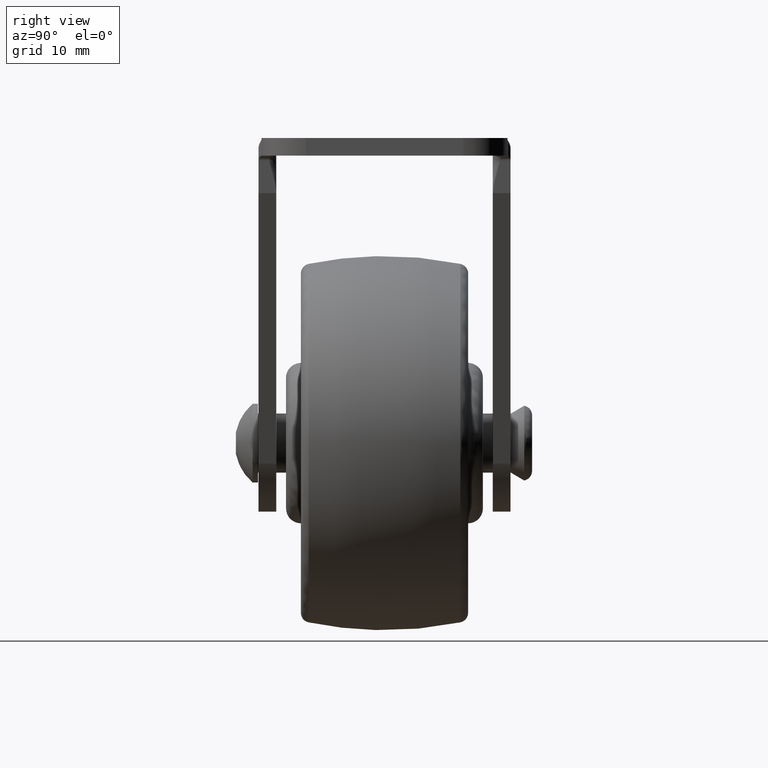
[diagram: clean part render]
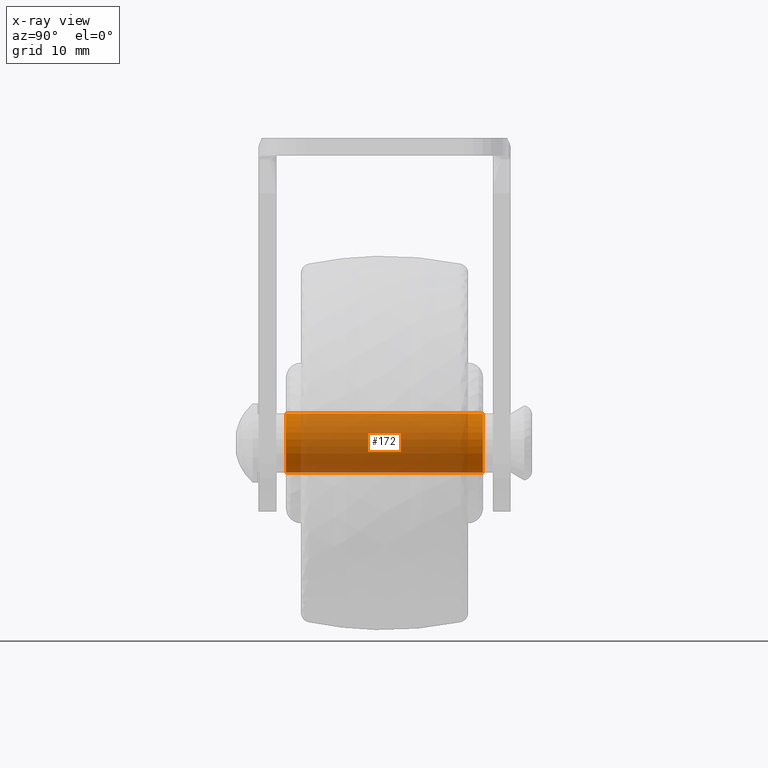
[diagram: x-ray — body ghosted, one internal face saturated and labeled with its STEP entity id]
A machine part, right view, then the same camera in x-ray: the body is ghosted and one INTERNAL B-rep face — a face not visible from any outside direction — is saturated and labeled: STEP entity #172.
In plain terms, the highlighted cylindrical surface (edge-blend (fillet) strip) has radius 3 mm, axis along (0, 1, 0).
Its self-contained STEP definition (entity closure, byte-faithful):
#172=ADVANCED_FACE('',(#499),#498,.F.);
#498=CYLINDRICAL_SURFACE('',#1751,3.00000000000E+00);
#499=FACE_OUTER_BOUND('',#1752,.T.);
#1748=CARTESIAN_POINT('',(0.00000000000E+00,9.90000000000E+02,0.00000000000E+00));
#1749=DIRECTION('',(-0.00000000000E+00,1.00000000000E+00,-0.00000000000E+00));
#1750=DIRECTION('',(1.22464679915E-16,0.00000000000E+00,-1.00000000000E+00));
#1751=AXIS2_PLACEMENT_3D('',#1748,#1749,#1750);
#1752=EDGE_LOOP('',(#2999,#3000,#3001,#3002));
#2999=ORIENTED_EDGE('',*,*,#3438,.F.);
#3000=ORIENTED_EDGE('',*,*,#3479,.F.);
#3001=ORIENTED_EDGE('',*,*,#3433,.T.);
#3002=ORIENTED_EDGE('',*,*,#3480,.T.);
#3433=EDGE_CURVE('',#3707,#3708,#3709,.T.);
#3438=EDGE_CURVE('',#3736,#3735,#3743,.T.);
#3479=EDGE_CURVE('',#3707,#3736,#4013,.T.);
#3480=EDGE_CURVE('',#3708,#3735,#4019,.T.);
#3707=VERTEX_POINT('',#5437);
#3708=VERTEX_POINT('',#5438);
#3709=CIRCLE('',#5442,3.00000000000E+00);
#3735=VERTEX_POINT('',#5457);
#3736=VERTEX_POINT('',#5458);
#3743=CIRCLE('',#5466,3.00000000000E+00);
#4013=(BOUNDED_CURVE() B_SPLINE_CURVE(1,(#5634,#5635),.UNSPECIFIED.,.F.,.F.) B_SPLINE_CURVE_WITH_KNOTS((2,2),(8.33333328360E-02,9.16666665505E-01),.UNSPECIFIED.) CURVE() GEOMETRIC_REPRESENTATION_ITEM() RATIONAL_B_SPLINE_CURVE((1.00000000000E+00,1.00000000000E+00)) REPRESENTATION_ITEM('') );
#4019=(BOUNDED_CURVE() B_SPLINE_CURVE(1,(#5636,#5637),.UNSPECIFIED.,.F.,.F.) B_SPLINE_CURVE_WITH_KNOTS((2,2),(8.33333333333E-02,9.16666666667E-01),.UNSPECIFIED.) CURVE() GEOMETRIC_REPRESENTATION_ITEM() RATIONAL_B_SPLINE_CURVE((7.50000000000E-01,7.50000000000E-01)) REPRESENTATION_ITEM('') );
#5437=CARTESIAN_POINT('',(5.92118946467E-16,-1.00000000000E+01,-3.00000000000E+00));
#5438=CARTESIAN_POINT('',(0.00000000000E+00,-1.00000000000E+01,3.00000000000E+00));
#5439=CARTESIAN_POINT('',(0.00000000000E+00,-1.00000000000E+01,0.00000000000E+00));
#5440=DIRECTION('',(-0.00000000000E+00,-1.00000000000E+00,0.00000000000E+00));
#5441=DIRECTION('',(-1.22460635382E-16,0.00000000000E+00,1.00000000000E+00));
#5442=AXIS2_PLACEMENT_3D('',#5439,#5440,#5441);
#5457=CARTESIAN_POINT('',(0.00000000000E+00,1.00000000000E+01,3.00000000000E+00));
#5458=CARTESIAN_POINT('',(5.92118946467E-16,1.00000000000E+01,-3.00000000000E+00));
#5463=CARTESIAN_POINT('',(0.00000000000E+00,1.00000000000E+01,0.00000000000E+00));
#5464=DIRECTION('',(-0.00000000000E+00,-1.00000000000E+00,0.00000000000E+00));
#5465=DIRECTION('',(-1.22460635382E-16,0.00000000000E+00,1.00000000000E+00));
#5466=AXIS2_PLACEMENT_3D('',#5463,#5464,#5465);
#5634=CARTESIAN_POINT('',(3.67394039744E-16,-1.00000000119E+01,-3.00000000000E+00));
#5635=CARTESIAN_POINT('',(3.67394039744E-16,9.99999997211E+00,-3.00000000000E+00));
#5636=CARTESIAN_POINT('',(0.00000000000E+00,-1.00000000000E+01,3.00000000000E+00));
#5637=CARTESIAN_POINT('',(0.00000000000E+00,1.00000000000E+01,3.00000000000E+00));